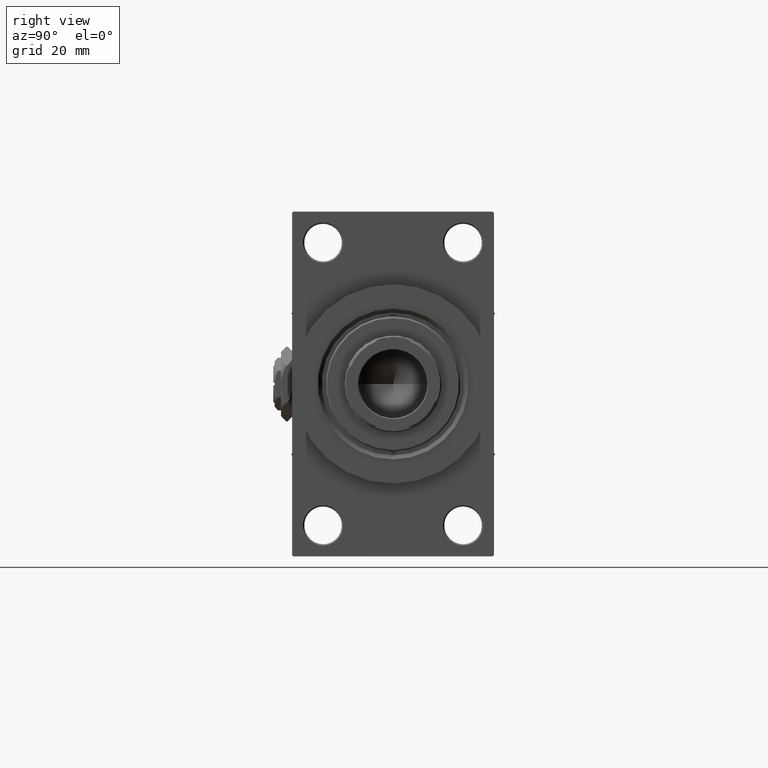
[diagram: clean part render]
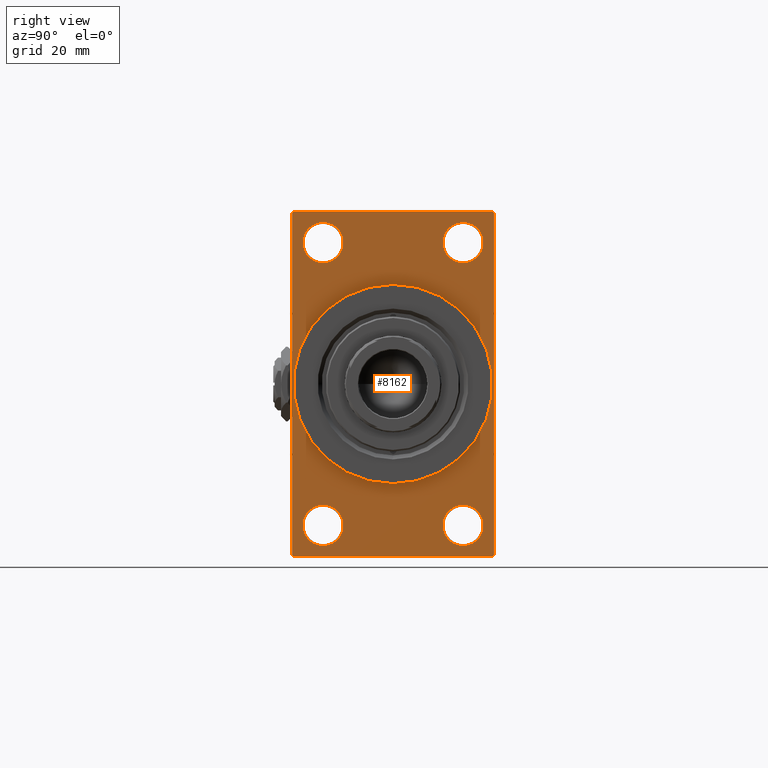
[diagram: same view with one face highlighted and labeled with its STEP entity id]
A machine part, right view. The second image highlights one B-rep face of the part: STEP entity #8162.
In plain terms, the highlighted planar face has unit normal (-1, 0, 0).
Its self-contained STEP definition (entity closure, byte-faithful):
#45 = AXIS2_PLACEMENT_3D ( 'NONE', #31603, #12282, #32089 ) ;
#434 = CARTESIAN_POINT ( 'NONE',  ( 167.9999999999999716, 26.00000000000000000, -52.49999999999999289 ) ) ;
#606 = AXIS2_PLACEMENT_3D ( 'NONE', #22972, #15201, #34029 ) ;
#839 = ORIENTED_EDGE ( 'NONE', *, *, #32662, .T. ) ;
#1263 = ORIENTED_EDGE ( 'NONE', *, *, #25187, .T. ) ;
#1902 = ORIENTED_EDGE ( 'NONE', *, *, #6743, .F. ) ;
#2081 = CARTESIAN_POINT ( 'NONE',  ( 167.9999999999999716, -37.49999999999999289, 63.50000000000000000 ) ) ;
#2505 = CIRCLE ( 'NONE', #32120, 7.500000000000007105 ) ;
#2581 = DIRECTION ( 'NONE',  ( 0.000000000000000000, 0.7071067811865573427, -0.7071067811865378028 ) ) ;
#2936 = FACE_BOUND ( 'NONE', #24752, .T. ) ;
#2957 = EDGE_CURVE ( 'NONE', #15017, #6583, #35496, .T. ) ;
#2993 = CARTESIAN_POINT ( 'NONE',  ( 167.9999999999999716, -25.99999999999999645, -52.49999999999999289 ) ) ;
#4229 = CARTESIAN_POINT ( 'NONE',  ( 167.9999999999999716, 37.00000000000000000, 63.99999999999998579 ) ) ;
#4653 = ORIENTED_EDGE ( 'NONE', *, *, #48665, .T. ) ;
#5282 = EDGE_CURVE ( 'NONE', #38717, #21941, #24493, .T. ) ;
#5499 = DIRECTION ( 'NONE',  ( -1.000000000000000000, 0.000000000000000000, -0.000000000000000000 ) ) ;
#5842 = LINE ( 'NONE', #2081, #26069 ) ;
#6043 = LINE ( 'NONE', #13546, #9156 ) ;
#6161 = CARTESIAN_POINT ( 'NONE',  ( 167.9999999999999716, -37.49999999999999289, -63.50000000000002842 ) ) ;
#6194 = CARTESIAN_POINT ( 'NONE',  ( 167.9999999999999716, -36.99999999999999289, -64.00000000000001421 ) ) ;
#6258 = DIRECTION ( 'NONE',  ( 0.000000000000000000, 0.000000000000000000, -1.000000000000000000 ) ) ;
#6583 = VERTEX_POINT ( 'NONE', #45894 ) ;
#6697 = CIRCLE ( 'NONE', #43533, 37.00000000000000000 ) ;
#6743 = EDGE_CURVE ( 'NONE', #9249, #23992, #27104, .T. ) ;
#7185 = VERTEX_POINT ( 'NONE', #4229 ) ;
#7235 = VERTEX_POINT ( 'NONE', #6194 ) ;
#7438 = VERTEX_POINT ( 'NONE', #19685 ) ;
#8162 = ADVANCED_FACE ( 'NONE', ( #14203, #37782, #45559, #2936, #14956, #45808 ), #41297, .F. ) ;
#9156 = VECTOR ( 'NONE', #40138, 1000.000000000000114 ) ;
#9186 = ORIENTED_EDGE ( 'NONE', *, *, #2957, .T. ) ;
#9249 = VERTEX_POINT ( 'NONE', #37290 ) ;
#9564 = CARTESIAN_POINT ( 'NONE',  ( 167.9999999999999716, -25.99999999999999645, -52.49999999999999289 ) ) ;
#9823 = VERTEX_POINT ( 'NONE', #33595 ) ;
#10370 = ORIENTED_EDGE ( 'NONE', *, *, #40030, .T. ) ;
#10652 = CIRCLE ( 'NONE', #16253, 7.500000000000007105 ) ;
#10913 = DIRECTION ( 'NONE',  ( -1.000000000000000000, 0.000000000000000000, -0.000000000000000000 ) ) ;
#11760 = DIRECTION ( 'NONE',  ( 0.000000000000000000, 0.000000000000000000, 1.000000000000000000 ) ) ;
#12007 = ORIENTED_EDGE ( 'NONE', *, *, #15776, .F. ) ;
#12282 = DIRECTION ( 'NONE',  ( 1.000000000000000000, 0.000000000000000000, 0.000000000000000000 ) ) ;
#12470 = CIRCLE ( 'NONE', #19652, 7.500000000000007105 ) ;
#12750 = VECTOR ( 'NONE', #21463, 1000.000000000000000 ) ;
#13379 = EDGE_CURVE ( 'NONE', #7438, #44176, #31120, .T. ) ;
#13436 = CARTESIAN_POINT ( 'NONE',  ( 167.9999999999999716, 4.531193156845206793E-15, -37.00000000000000000 ) ) ;
#13546 = CARTESIAN_POINT ( 'NONE',  ( 167.9999999999999716, 37.00000000000000000, 63.99999999999998579 ) ) ;
#13850 = AXIS2_PLACEMENT_3D ( 'NONE', #46116, #31575, #11760 ) ;
#14007 = DIRECTION ( 'NONE',  ( -1.000000000000000000, 0.000000000000000000, -0.000000000000000000 ) ) ;
#14203 = FACE_BOUND ( 'NONE', #43341, .T. ) ;
#14807 = CARTESIAN_POINT ( 'NONE',  ( 167.9999999999999716, 26.00000000000000000, 52.49999999999999289 ) ) ;
#14956 = FACE_BOUND ( 'NONE', #16707, .T. ) ;
#15017 = VERTEX_POINT ( 'NONE', #21152 ) ;
#15201 = DIRECTION ( 'NONE',  ( -1.000000000000000000, 0.000000000000000000, -0.000000000000000000 ) ) ;
#15776 = EDGE_CURVE ( 'NONE', #29798, #7235, #46836, .T. ) ;
#16185 = DIRECTION ( 'NONE',  ( 0.000000000000000000, 0.000000000000000000, 1.000000000000000000 ) ) ;
#16253 = AXIS2_PLACEMENT_3D ( 'NONE', #14807, #16762, #27588 ) ;
#16707 = EDGE_LOOP ( 'NONE', ( #20759, #19394 ) ) ;
#16762 = DIRECTION ( 'NONE',  ( -1.000000000000000000, 0.000000000000000000, -0.000000000000000000 ) ) ;
#17432 = CARTESIAN_POINT ( 'NONE',  ( 167.9999999999999716, 26.00000000000000000, -60.00000000000000000 ) ) ;
#17478 = CARTESIAN_POINT ( 'NONE',  ( 167.9999999999999716, 26.00000000000000000, -52.49999999999999289 ) ) ;
#17544 = CARTESIAN_POINT ( 'NONE',  ( 167.9999999999999716, 26.00000000000000000, -44.99999999999998579 ) ) ;
#17818 = ORIENTED_EDGE ( 'NONE', *, *, #41912, .T. ) ;
#17964 = VERTEX_POINT ( 'NONE', #13436 ) ;
#18011 = DIRECTION ( 'NONE',  ( 1.000000000000000000, 0.000000000000000000, 0.000000000000000000 ) ) ;
#18517 = VERTEX_POINT ( 'NONE', #17544 ) ;
#19016 = CARTESIAN_POINT ( 'NONE',  ( 167.9999999999999716, -25.99999999999999645, -60.00000000000000000 ) ) ;
#19133 = ORIENTED_EDGE ( 'NONE', *, *, #30867, .T. ) ;
#19394 = ORIENTED_EDGE ( 'NONE', *, *, #28845, .F. ) ;
#19652 = AXIS2_PLACEMENT_3D ( 'NONE', #17478, #5499, #36801 ) ;
#19685 = CARTESIAN_POINT ( 'NONE',  ( 167.9999999999999716, -37.49999999999999289, 63.50000000000000000 ) ) ;
#19790 = LINE ( 'NONE', #47129, #43513 ) ;
#20759 = ORIENTED_EDGE ( 'NONE', *, *, #32947, .F. ) ;
#21152 = CARTESIAN_POINT ( 'NONE',  ( 167.9999999999999716, 26.00000000000000000, 44.99999999999998579 ) ) ;
#21463 = DIRECTION ( 'NONE',  ( 0.000000000000000000, -1.000000000000000000, -1.850371707708594563E-16 ) ) ;
#21616 = CIRCLE ( 'NONE', #45, 37.00000000000000000 ) ;
#21941 = VERTEX_POINT ( 'NONE', #24515 ) ;
#22222 = EDGE_CURVE ( 'NONE', #18517, #31984, #24940, .T. ) ;
#22760 = CARTESIAN_POINT ( 'NONE',  ( 167.9999999999999716, -37.00000000000001421, 63.99999999999997158 ) ) ;
#22972 = CARTESIAN_POINT ( 'NONE',  ( 167.9999999999999716, 0.000000000000000000, 0.000000000000000000 ) ) ;
#23085 = CARTESIAN_POINT ( 'NONE',  ( 167.9999999999999716, -37.49999999999999289, 63.99999999999997158 ) ) ;
#23724 = EDGE_CURVE ( 'NONE', #44617, #47759, #2505, .T. ) ;
#23992 = VERTEX_POINT ( 'NONE', #40787 ) ;
#24493 = CIRCLE ( 'NONE', #41328, 7.500000000000007105 ) ;
#24515 = CARTESIAN_POINT ( 'NONE',  ( 167.9999999999999716, -25.99999999999999645, 60.00000000000000711 ) ) ;
#24752 = EDGE_LOOP ( 'NONE', ( #9186, #10370 ) ) ;
#24854 = DIRECTION ( 'NONE',  ( -1.000000000000000000, 0.000000000000000000, -0.000000000000000000 ) ) ;
#24940 = CIRCLE ( 'NONE', #27359, 7.500000000000007105 ) ;
#25050 = DIRECTION ( 'NONE',  ( 0.000000000000000000, 0.000000000000000000, 1.000000000000000000 ) ) ;
#25145 = CARTESIAN_POINT ( 'NONE',  ( 167.9999999999999716, -36.99999999999999289, -64.00000000000001421 ) ) ;
#25187 = EDGE_CURVE ( 'NONE', #21941, #38717, #40151, .T. ) ;
#25450 = VECTOR ( 'NONE', #34384, 1000.000000000000000 ) ;
#25580 = ORIENTED_EDGE ( 'NONE', *, *, #5282, .T. ) ;
#26069 = VECTOR ( 'NONE', #44929, 1000.000000000000000 ) ;
#26180 = VECTOR ( 'NONE', #39375, 1000.000000000000000 ) ;
#27104 = LINE ( 'NONE', #27847, #26180 ) ;
#27240 = EDGE_LOOP ( 'NONE', ( #30992, #43157, #12007, #47256, #1902, #17818, #42693, #4653 ) ) ;
#27359 = AXIS2_PLACEMENT_3D ( 'NONE', #434, #43031, #16185 ) ;
#27588 = DIRECTION ( 'NONE',  ( 0.000000000000000000, 0.000000000000000000, 1.000000000000000000 ) ) ;
#27847 = CARTESIAN_POINT ( 'NONE',  ( 167.9999999999999716, 37.50000000000000000, 63.99999999999998579 ) ) ;
#28845 = EDGE_CURVE ( 'NONE', #17964, #9823, #6697, .T. ) ;
#28954 = CARTESIAN_POINT ( 'NONE',  ( 167.9999999999999716, -25.99999999999999645, 52.50000000000000000 ) ) ;
#29798 = VERTEX_POINT ( 'NONE', #30652 ) ;
#29974 = CARTESIAN_POINT ( 'NONE',  ( 167.9999999999999716, -25.99999999999999645, 52.50000000000000000 ) ) ;
#30652 = CARTESIAN_POINT ( 'NONE',  ( 167.9999999999999716, 37.00000000000002132, -64.00000000000000000 ) ) ;
#30867 = EDGE_CURVE ( 'NONE', #31984, #18517, #12470, .T. ) ;
#30992 = ORIENTED_EDGE ( 'NONE', *, *, #13379, .T. ) ;
#31109 = DIRECTION ( 'NONE',  ( -0.000000000000000000, 0.7071067811865376918, 0.7071067811865573427 ) ) ;
#31120 = LINE ( 'NONE', #23085, #25450 ) ;
#31399 = CARTESIAN_POINT ( 'NONE',  ( 167.9999999999999716, 37.50000000000000000, 63.99999999999998579 ) ) ;
#31575 = DIRECTION ( 'NONE',  ( -1.000000000000000000, 0.000000000000000000, -0.000000000000000000 ) ) ;
#31603 = CARTESIAN_POINT ( 'NONE',  ( 167.9999999999999716, 0.000000000000000000, 0.000000000000000000 ) ) ;
#31984 = VERTEX_POINT ( 'NONE', #17432 ) ;
#32089 = DIRECTION ( 'NONE',  ( 0.000000000000000000, 0.000000000000000000, -1.000000000000000000 ) ) ;
#32120 = AXIS2_PLACEMENT_3D ( 'NONE', #2993, #14007, #25050 ) ;
#32662 = EDGE_CURVE ( 'NONE', #47759, #44617, #36804, .T. ) ;
#32947 = EDGE_CURVE ( 'NONE', #9823, #17964, #21616, .T. ) ;
#33595 = CARTESIAN_POINT ( 'NONE',  ( 167.9999999999999716, 0.000000000000000000, 37.00000000000000000 ) ) ;
#34029 = DIRECTION ( 'NONE',  ( -0.000000000000000000, 0.000000000000000000, 1.000000000000000000 ) ) ;
#34384 = DIRECTION ( 'NONE',  ( 0.000000000000000000, 0.000000000000000000, -1.000000000000000000 ) ) ;
#35496 = CIRCLE ( 'NONE', #13850, 7.500000000000007105 ) ;
#36342 = VECTOR ( 'NONE', #42431, 1000.000000000000000 ) ;
#36525 = CARTESIAN_POINT ( 'NONE',  ( 167.9999999999999716, 37.49999999999999289, -64.00000000000000000 ) ) ;
#36719 = VERTEX_POINT ( 'NONE', #22760 ) ;
#36801 = DIRECTION ( 'NONE',  ( 0.000000000000000000, 0.000000000000000000, 1.000000000000000000 ) ) ;
#36804 = CIRCLE ( 'NONE', #43234, 7.500000000000007105 ) ;
#36973 = DIRECTION ( 'NONE',  ( 0.000000000000000000, 0.000000000000000000, 1.000000000000000000 ) ) ;
#37082 = CARTESIAN_POINT ( 'NONE',  ( 167.9999999999999716, 0.000000000000000000, 0.000000000000000000 ) ) ;
#37290 = CARTESIAN_POINT ( 'NONE',  ( 167.9999999999999716, 37.50000000000000000, 63.49999999999998579 ) ) ;
#37782 = FACE_BOUND ( 'NONE', #48154, .T. ) ;
#38717 = VERTEX_POINT ( 'NONE', #49465 ) ;
#39375 = DIRECTION ( 'NONE',  ( 0.000000000000000000, -5.421010862427522170E-17, -1.000000000000000000 ) ) ;
#39960 = LINE ( 'NONE', #25145, #45155 ) ;
#40030 = EDGE_CURVE ( 'NONE', #6583, #15017, #10652, .T. ) ;
#40057 = EDGE_CURVE ( 'NONE', #29798, #23992, #19790, .T. ) ;
#40138 = DIRECTION ( 'NONE',  ( 0.000000000000000000, -0.7071067811865474617, 0.7071067811865474617 ) ) ;
#40149 = DIRECTION ( 'NONE',  ( 0.000000000000000000, 0.000000000000000000, 1.000000000000000000 ) ) ;
#40151 = CIRCLE ( 'NONE', #40983, 7.500000000000007105 ) ;
#40474 = ORIENTED_EDGE ( 'NONE', *, *, #22222, .T. ) ;
#40787 = CARTESIAN_POINT ( 'NONE',  ( 167.9999999999999716, 37.49999999999999289, -63.50000000000001421 ) ) ;
#40983 = AXIS2_PLACEMENT_3D ( 'NONE', #28954, #44752, #36973 ) ;
#41297 = PLANE ( 'NONE',  #606 ) ;
#41328 = AXIS2_PLACEMENT_3D ( 'NONE', #29974, #10913, #45265 ) ;
#41508 = EDGE_CURVE ( 'NONE', #44176, #7235, #39960, .T. ) ;
#41789 = EDGE_CURVE ( 'NONE', #7185, #36719, #43417, .T. ) ;
#41912 = EDGE_CURVE ( 'NONE', #9249, #7185, #6043, .T. ) ;
#42431 = DIRECTION ( 'NONE',  ( 0.000000000000000000, -1.000000000000000000, -1.850371707708594563E-16 ) ) ;
#42693 = ORIENTED_EDGE ( 'NONE', *, *, #41789, .T. ) ;
#42882 = ORIENTED_EDGE ( 'NONE', *, *, #23724, .T. ) ;
#43031 = DIRECTION ( 'NONE',  ( -1.000000000000000000, 0.000000000000000000, -0.000000000000000000 ) ) ;
#43157 = ORIENTED_EDGE ( 'NONE', *, *, #41508, .T. ) ;
#43234 = AXIS2_PLACEMENT_3D ( 'NONE', #9564, #24854, #40149 ) ;
#43341 = EDGE_LOOP ( 'NONE', ( #25580, #1263 ) ) ;
#43417 = LINE ( 'NONE', #31399, #36342 ) ;
#43513 = VECTOR ( 'NONE', #31109, 1000.000000000000114 ) ;
#43533 = AXIS2_PLACEMENT_3D ( 'NONE', #37082, #18011, #6258 ) ;
#43832 = EDGE_LOOP ( 'NONE', ( #19133, #40474 ) ) ;
#44176 = VERTEX_POINT ( 'NONE', #6161 ) ;
#44617 = VERTEX_POINT ( 'NONE', #48079 ) ;
#44752 = DIRECTION ( 'NONE',  ( -1.000000000000000000, 0.000000000000000000, -0.000000000000000000 ) ) ;
#44929 = DIRECTION ( 'NONE',  ( -0.000000000000000000, -0.7071067811865524577, -0.7071067811865426878 ) ) ;
#45155 = VECTOR ( 'NONE', #2581, 1000.000000000000000 ) ;
#45265 = DIRECTION ( 'NONE',  ( 0.000000000000000000, 0.000000000000000000, 1.000000000000000000 ) ) ;
#45559 = FACE_BOUND ( 'NONE', #43832, .T. ) ;
#45808 = FACE_OUTER_BOUND ( 'NONE', #27240, .T. ) ;
#45894 = CARTESIAN_POINT ( 'NONE',  ( 167.9999999999999716, 26.00000000000000000, 60.00000000000000000 ) ) ;
#46116 = CARTESIAN_POINT ( 'NONE',  ( 167.9999999999999716, 26.00000000000000000, 52.49999999999999289 ) ) ;
#46836 = LINE ( 'NONE', #36525, #12750 ) ;
#47129 = CARTESIAN_POINT ( 'NONE',  ( 167.9999999999999716, 37.49999999999999289, -63.50000000000001421 ) ) ;
#47256 = ORIENTED_EDGE ( 'NONE', *, *, #40057, .T. ) ;
#47759 = VERTEX_POINT ( 'NONE', #19016 ) ;
#48079 = CARTESIAN_POINT ( 'NONE',  ( 167.9999999999999716, -25.99999999999999645, -44.99999999999998579 ) ) ;
#48154 = EDGE_LOOP ( 'NONE', ( #839, #42882 ) ) ;
#48665 = EDGE_CURVE ( 'NONE', #36719, #7438, #5842, .T. ) ;
#49465 = CARTESIAN_POINT ( 'NONE',  ( 167.9999999999999716, -25.99999999999999645, 44.99999999999999289 ) ) ;